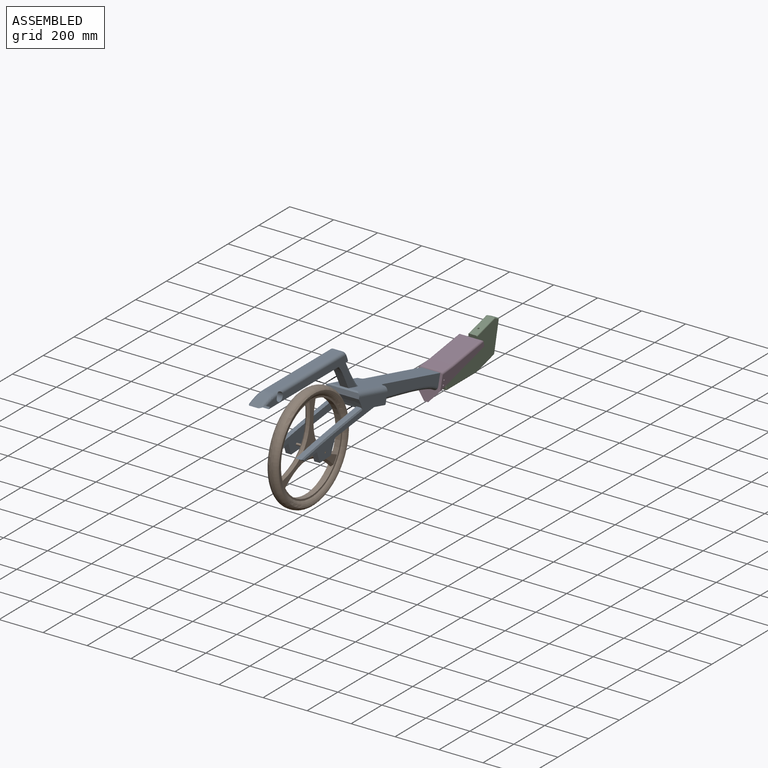
[diagram: assembled view]
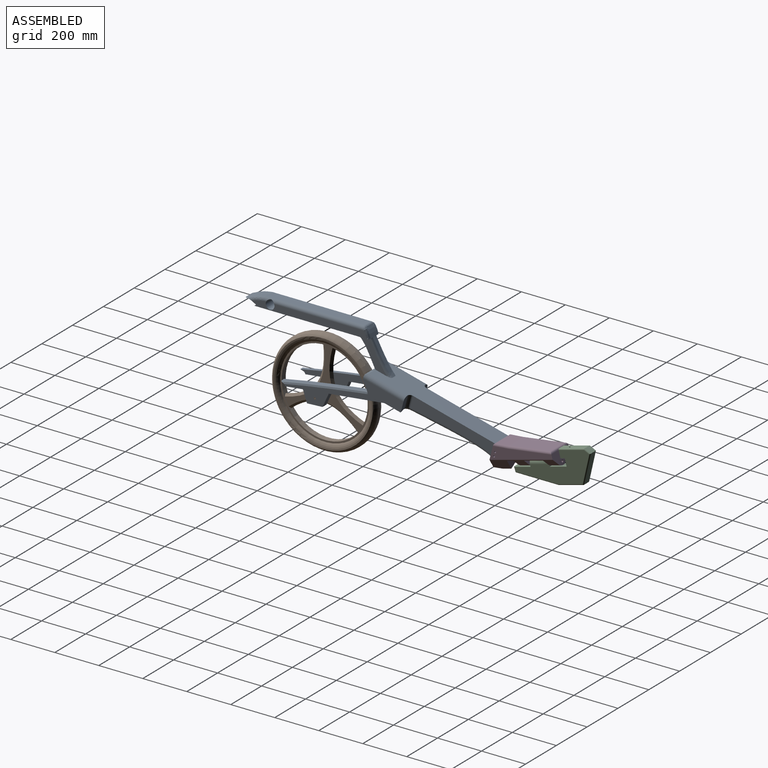
[diagram: assembled view, second angle]
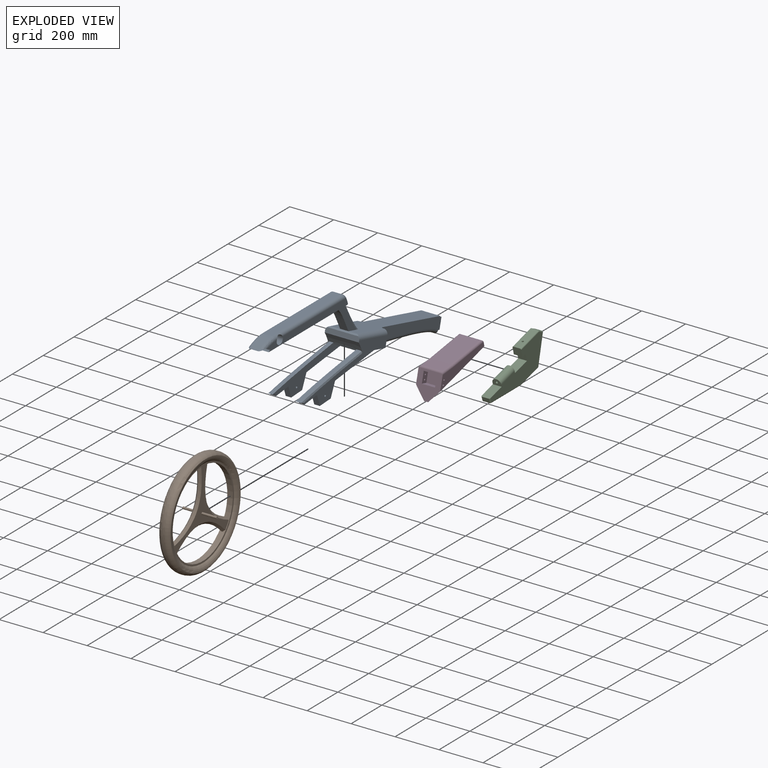
[diagram: exploded view]
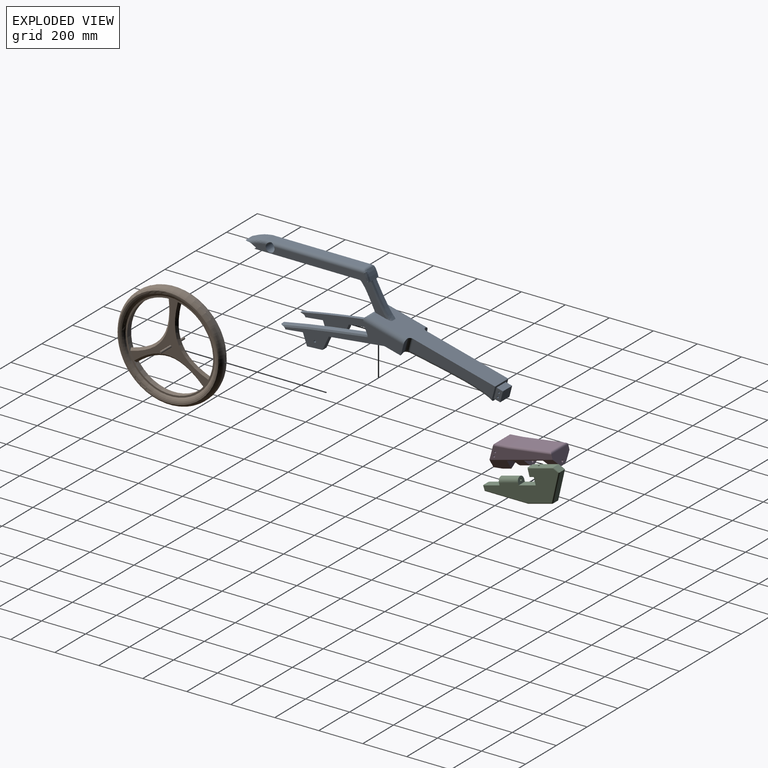
[diagram: exploded view, second angle]
ASSEMBLY  parts=4 mates=3
PART A: 78 faces, bbox 169.8x1180.4x386.9 mm
  f0: plane 155x150.26mm, normal (0,-0.25,-0.97), area 19461.9mm2, adj f1,f22,f23,f24,f34,f35,f64,f66
  f1: extruded ~155x52.6mm, area 8241.9mm2, adj f0,f21,f22,f23,f34,f36,f67,f74
  f2: plane 87.86x69.63mm, normal (0,0.97,-0.25), area 2917.9mm2, adj f19,f24,f25,f26,f27,f28,f32,f33
  f3: plane 69.88x22.41mm, normal (0,0.97,-0.25), area 1157.9mm2, adj f23,f43,f61,f66
  f4: extruded ~48x42.13mm, area 2280.9mm2, adj f10,f15,f52,f53,f54,f56,f57
  f5: plane 447.93x38mm, normal (0,0,1), area 17021.3mm2, adj f46,f50,f51,f52
  f6: extruded ~89.24x38mm, area 3565.3mm2, adj f7,f45,f46,f47
  f7: extruded ~64.82x24.32mm, area 1253.8mm2, adj f6,f8,f45,f47
  f8: extruded ~68x31.79mm, area 2359mm2, adj f7,f9,f12,f13,f45,f47
  f9: extruded ~68x7.61mm, area 683mm2, adj f8,f10,f12,f13
  f10: plane 523.5x69.99mm, normal (0,0,-1), area 33182mm2, adj f4,f9,f12,f13,f14,f16,f17,f53
  f11: cylinder r=20mm len=68mm, axis (-1,0,0), area 8545.1mm2, adj f12,f13,f50,f51
  f12: plane 524.93x31.01mm, normal (1,0,0), area 14607.3mm2, adj f8,f9,f10,f11,f45,f50,f53
  f13: plane 524.93x31.01mm, normal (-1,0,0), area 14607.3mm2, adj f8,f9,f10,f11,f47,f51,f56
  f14: extruded ~123.62x77.35mm, area 5601mm2, adj f10,f16,f17,f20
  f15: extruded ~142.09x88.91mm, area 3045.4mm2, adj f4,f19,f59,f60
  f16: plane 137.34x130.44mm, normal (1,0,0), area 4982.6mm2, adj f10,f14,f19,f60
  f17: plane 137.34x130.44mm, normal (-1,0,0), area 4982.6mm2, adj f10,f14,f19,f59
  f18: plane 69.88x22.41mm, normal (0,0.97,-0.25), area 1157.9mm2, adj f22,f44,f62,f64
  f19: plane 565.3x148.86mm, normal (0,0.25,0.97), area 52471.6mm2, adj f2,f15,f16,f17,f20,f25,f26,f43
  f20: extruded ~142.4x11.04mm, area 1461.1mm2, adj f14,f19,f21,f61,f62
  f21: extruded ~155x21.72mm, area 3384.6mm2, adj f1,f20,f22,f23,f61,f62
  f22: plane 542.69x172.18mm, normal (1,0,0), area 22240.3mm2, adj f0,f1,f18,f21,f35,f37,f38,f39
  f23: plane 543.57x173.06mm, normal (-1,0,0), area 22243.6mm2, adj f0,f1,f3,f21,f61,f66,f68,f69
  f24: extruded ~387.28x100.08mm, area 22554.7mm2, adj f0,f2,f63,f64,f65,f66
  f25: plane 386.29x148.81mm, normal (1,0,0), area 17944.1mm2, adj f2,f19,f44,f63
  f26: plane 386.29x148.81mm, normal (-1,0,0), area 17944.1mm2, adj f2,f19,f43,f65
  f27: plane 60x29.05mm, normal (0,0.25,0.97), area 1800mm2, adj f2,f31,f32,f33
  f28: plane 60x29.05mm, normal (0,-0.25,-0.97), area 1800mm2, adj f2,f31,f32,f33
  f29: cylinder r=4mm len=60mm, axis (-1,0,0), area 1508mm2, adj f32,f33
  f30: cylinder r=4mm len=60mm, axis (-1,0,0), area 1508mm2, adj f32,f33
  f31: plane 60x48.41mm, normal (0,0.97,-0.25), area 3000mm2, adj f27,f28,f32,f33
  f32: plane 55.92x41.56mm, normal (1,0,0), area 1399.5mm2, adj f2,f27,f28,f29,f30,f31
  f33: plane 55.92x41.56mm, normal (-1,0,0), area 1399.5mm2, adj f2,f27,f28,f29,f30,f31
  f34: plane 473.49x121.38mm, normal (-1,0,0), area 17473.9mm2, adj f0,f1,f35,f36,f37,f38,f39,f40
  f35: plane 252.89x28.86mm, normal (0,0.11,-0.99), area 6465.2mm2, adj f0,f22,f34,f41
  f36: extruded ~395.39x62.73mm, area 6166.3mm2, adj f1,f34,f37,f77
  f37: extruded ~25.4x22.67mm, area 633.9mm2, adj f22,f34,f36,f38,f77
  f38: plane 80.21x25.4mm, normal (0,0.11,-0.99), area 2050.5mm2, adj f22,f34,f37,f39
  f39: plane 52.73x25.4mm, normal (0,-0.94,-0.33), area 1420.4mm2, adj f22,f34,f38,f40
  f40: plane 70.71x25.4mm, normal (0,0.06,-1), area 1798.9mm2, adj f22,f34,f39,f41
  f41: plane 62.16x28.37mm, normal (0,0.91,-0.42), area 1735.5mm2, adj f22,f34,f35,f40
  f42: cylinder r=5mm len=25.4mm, axis (1,0,0), area 798mm2, adj f22,f34
  f43: cylinder r=15mm len=57.85mm, axis (0,-0.25,-0.97), area 1301mm2, adj f3,f19,f26,f61,f66
  f44: cylinder r=15mm len=57.85mm, axis (0,0.25,0.97), area 1301mm2, adj f18,f19,f25,f62,f64
  f45: bspline ~92.7x41.45mm, area 1786.7mm2, adj f6,f7,f8,f12,f48
  f46: cylinder r=15mm len=38mm, axis (-1,0,0), area 57.3mm2, adj f5,f6,f48,f49
  f47: bspline ~92.7x41.45mm, area 1786.7mm2, adj f6,f7,f8,f13,f49
  f48: sphere r=15mm, area 22.6mm2, adj f45,f46,f50
  f49: sphere r=15mm, area 22.6mm2, adj f46,f47,f51
  f50: cylinder r=15mm len=454.74mm, axis (0,1,0), area 10285.9mm2, adj f5,f11,f12,f48,f54,f55
  f51: cylinder r=15mm len=454.74mm, axis (0,-1,0), area 10285.9mm2, adj f5,f11,f13,f49,f57,f58
  f52: cylinder r=15mm len=44.7mm, axis (-1,0,0), area 455.7mm2, adj f4,f5,f55,f58
  f53: bspline ~47.07x29.05mm, area 598.9mm2, adj f4,f10,f12,f54
  f54: bspline ~15.73x12.96mm, area 130.2mm2, adj f4,f50,f53,f55
  f55: bspline ~10.95x10.95mm, area 54.1mm2, adj f50,f52,f54
  f56: bspline ~47.07x29.05mm, area 598.9mm2, adj f4,f10,f13,f57
  f57: bspline ~15.73x12.96mm, area 130.2mm2, adj f4,f51,f56,f58
  f58: bspline ~10.95x10.95mm, area 36.2mm2, adj f51,f52,f57
  f59: bspline ~156.24x101.37mm, area 2577.2mm2, adj f10,f15,f17,f19
  f60: bspline ~156.24x101.37mm, area 2577.2mm2, adj f10,f15,f16,f19
  f61: cylinder r=20mm len=188.97mm, axis (0,-0.97,0.25), area 5869.4mm2, adj f3,f19,f20,f21,f23,f43
  f62: cylinder r=20mm len=188.97mm, axis (0,0.97,-0.25), area 5869.4mm2, adj f18,f19,f20,f21,f22,f44
  f63: bspline ~480.73x131.9mm, area 9076.5mm2, adj f2,f24,f25,f64
  f64: bspline ~55.05x34.48mm, area 844mm2, adj f0,f18,f22,f24,f44,f63
  f65: bspline ~480.73x131.9mm, area 9076.5mm2, adj f2,f24,f26,f66
  f66: bspline ~55.05x34.48mm, area 843.9mm2, adj f0,f3,f23,f24,f43,f65
  f67: plane 473.49x121.38mm, normal (1,0,0), area 17473.9mm2, adj f0,f1,f68,f69,f70,f71,f72,f73
  f68: plane 252.89x28.86mm, normal (0,0.11,-0.99), area 6363.4mm2, adj f0,f23,f67,f69
  f69: plane 62.16x28.37mm, normal (0,0.91,-0.42), area 1708.1mm2, adj f23,f67,f68,f70
  f70: plane 70.71x25mm, normal (0,0.06,-1), area 1770.5mm2, adj f23,f67,f69,f71
  f71: plane 52.73x25mm, normal (0,-0.94,-0.33), area 1398mm2, adj f23,f67,f70,f72
  f72: plane 80.21x25mm, normal (0,0.11,-0.99), area 2018.3mm2, adj f23,f67,f71,f73
  f73: extruded ~25x22.67mm, area 622.3mm2, adj f23,f67,f72,f74,f76
  f74: extruded ~395.39x62.73mm, area 6006.1mm2, adj f1,f67,f73,f76
  f75: cylinder r=5mm len=25mm, axis (-1,0,0), area 785.4mm2, adj f23,f67
  f76: bspline ~422.49x76.92mm, area 6169.5mm2, adj f1,f23,f73,f74
  f77: bspline ~495.8x91.51mm, area 6169.5mm2, adj f1,f22,f36,f37
PART B: 21 faces, bbox 160.2x543.8x543.8 mm
  f0: cylinder r=195.5mm len=391mm, axis (-1,0,0), area 28188.3mm2, adj f1,f2,f3,f4,f15,f16,f17,f18
  f1: plane 406x406mm, normal (1,0,0), area 9389.4mm2, adj f0,f12
  f2: plane 406x406mm, normal (-1,0,0), area 9389.4mm2, adj f0,f11
  f3: plane 362.03x315.27mm, normal (1,0,0), area 19150.4mm2, adj f0,f5,f15,f17,f19
  f4: plane 362.03x315.27mm, normal (-1,0,0), area 19154.2mm2, adj f0,f7,f16,f18,f20
  f5: cylinder r=5mm len=67.5mm, axis (-1,0,0), area 2120.6mm2, adj f3,f8
  f6: cylinder r=2mm len=155mm, axis (-1,0,0), area 1947.8mm2, adj f8,f9
  f7: cylinder r=5mm len=67.5mm, axis (-1,0,0), area 2120.6mm2, adj f4,f9
  f8: plane 10x10mm, normal (1,0,0), area 66mm2, adj f5,f6
  f9: plane 10x10mm, normal (-1,0,0), area 66mm2, adj f6,f7
  f10: cylinder r=240.5mm len=481mm, axis (-1,0,0), area 9785mm2, adj f13,f14
  f11: torus R=227.51mm, axis (1,0,0), area 38610.3mm2, adj f2,f13
  f12: torus R=227.51mm, axis (1,0,0), area 38610.3mm2, adj f1,f14
  f13: torus R=215.1mm, axis (-1,0,0), area 39937.4mm2, adj f10,f11
  f14: torus R=215.1mm, axis (1,0,0), area 39937.4mm2, adj f10,f12
  f15: bspline ~275.26x170.19mm, area 4976.4mm2, adj f0,f3,f16
  f16: bspline ~275.26x170.2mm, area 4976.3mm2, adj f0,f4,f15
  f17: bspline ~318x82.71mm, area 4976.4mm2, adj f0,f3,f18
  f18: bspline ~318x82.7mm, area 4976.3mm2, adj f0,f4,f17
  f19: bspline ~275.26x170.2mm, area 4976.3mm2, adj f0,f3,f20
  f20: bspline ~275.26x170.19mm, area 4976.4mm2, adj f0,f4,f19
PART C: 36 faces, bbox 40x349.3x181.5 mm
  f0: plane 30x18.84mm, normal (0,-0.95,-0.33), area 598.1mm2, adj f12,f28,f31,f34
  f1: plane 193.37x30mm, normal (0,0,-1), area 5801.1mm2, adj f2,f29,f30,f34
  f2: plane 110.59x30mm, normal (0,0.26,-0.97), area 3384.5mm2, adj f1,f22,f26,f27,f35
  f3: plane 134.39x30.46mm, normal (0,0.98,-0.22), area 4133.9mm2, adj f4,f21,f22,f23
  f4: plane 30x28.75mm, normal (0,0.43,0.9), area 955.4mm2, adj f3,f5,f19,f20
  f5: plane 116.68x31.27mm, normal (0,-0.26,0.97), area 3573.7mm2, adj f4,f6,f17,f18,f35
  f6: plane 40x36.45mm, normal (0,-0.97,-0.26), area 1498.5mm2, adj f5,f7,f13,f14,f17,f18
  f7: plane 40x19.32mm, normal (0,0.26,-0.97), area 800mm2, adj f6,f8,f13,f14
  f8: plane 40x32.01mm, normal (0,-0.97,-0.26), area 1325.4mm2, adj f7,f9,f13,f14
  f9: plane 77.27x40mm, normal (0,-0.26,0.97), area 3200mm2, adj f8,f10,f13,f14
  f10: plane 40x28.98mm, normal (0,0.97,0.26), area 949.8mm2, adj f9,f13,f14,f15,f16
  f11: plane 40x28.98mm, normal (0,-0.97,-0.26), area 949.8mm2, adj f12,f13,f14,f15,f16
  f12: plane 77.27x40mm, normal (0,-0.26,0.97), area 3189.2mm2, adj f0,f11,f13,f14,f28,f31
  f13: plane 338.65x171.15mm, normal (1,0,0), area 26037.2mm2, adj f6,f7,f8,f9,f10,f11,f12,f16
  f14: plane 338.65x171.15mm, normal (-1,0,0), area 26037.2mm2, adj f6,f7,f8,f9,f10,f11,f12,f16
  f15: cylinder r=5mm len=89.52mm, axis (0,-0.97,-0.26), area 2827.4mm2, adj f10,f11
  f16: cylinder r=20mm len=92.11mm, axis (0,0.97,0.26), area 5654.9mm2, adj f10,f11,f13,f14
  f17: cylinder r=5mm len=117.98mm, axis (0,0.97,0.26), area 943.5mm2, adj f5,f6,f13,f19
  f18: cylinder r=5mm len=117.98mm, axis (0,-0.97,-0.26), area 943.5mm2, adj f5,f6,f14,f20
  f19: cylinder r=5mm len=30.9mm, axis (0,0.9,-0.43), area 233.4mm2, adj f4,f13,f17,f21
  f20: cylinder r=5mm len=30.9mm, axis (0,-0.9,0.43), area 233.4mm2, adj f4,f14,f18,f23
  f21: cylinder r=5mm len=135.49mm, axis (0,-0.22,-0.98), area 1070.9mm2, adj f3,f13,f19,f24
  f22: cylinder r=5mm len=30mm, axis (1,0,0), area 162.9mm2, adj f2,f3,f24,f25
  f23: cylinder r=5mm len=135.49mm, axis (0,0.22,0.98), area 1070.9mm2, adj f3,f14,f20,f25
  f24: sphere r=5mm, area 27.2mm2, adj f21,f22,f26
  f25: sphere r=5mm, area 27.2mm2, adj f22,f23,f27
  f26: cylinder r=5mm len=111.89mm, axis (0,-0.97,-0.26), area 897.3mm2, adj f2,f13,f24,f29
  f27: cylinder r=5mm len=111.89mm, axis (0,0.97,0.26), area 897.3mm2, adj f2,f14,f25,f30
  f28: cylinder r=5mm len=20.48mm, axis (0,-0.33,0.95), area 155.6mm2, adj f0,f12,f13,f32
  f29: cylinder r=5mm len=193.37mm, axis (0,-1,0), area 1516.8mm2, adj f1,f13,f26,f32
  f30: cylinder r=5mm len=193.37mm, axis (0,1,0), area 1516.8mm2, adj f1,f14,f27,f33
  f31: cylinder r=5mm len=20.48mm, axis (0,0.33,-0.95), area 155.6mm2, adj f0,f12,f14,f33
  f32: sphere r=5mm, area 30.9mm2, adj f28,f29,f34
  f33: sphere r=5mm, area 30.9mm2, adj f30,f31,f34
  f34: cylinder r=5mm len=30mm, axis (-1,0,0), area 185.7mm2, adj f0,f1,f32,f33
  f35: cylinder r=4mm len=142.39mm, axis (0,-0.26,0.97), area 3651.1mm2, adj f2,f5
PART D: 36 faces, bbox 110x310.5x156.8 mm
  f0: cylinder r=4mm len=25mm, axis (-1,0,0), area 628.3mm2, adj f16,f19
  f1: cylinder r=4mm len=25mm, axis (-1,0,0), area 628.3mm2, adj f16,f19
  f2: plane 115.81x110.02mm, normal (0,-0.97,0.25), area 7745.8mm2, adj f3,f15,f16,f17,f18,f19,f20,f24
  f3: plane 35.61x18.43mm, normal (0,0,-1), area 328.1mm2, adj f2,f24,f25
  f4: plane 100x55.62mm, normal (0,0.97,-0.25), area 2872.1mm2, adj f5,f24,f25
  f5: plane 100x28.98mm, normal (0,0.26,-0.97), area 3000mm2, adj f4,f6,f24,f25
  f6: plane 100x33.8mm, normal (0,-0.97,-0.26), area 2134.3mm2, adj f5,f23,f24,f25,f32,f33
  f7: plane 100x33.8mm, normal (0,0.97,0.26), area 2134.3mm2, adj f8,f23,f24,f25,f32,f33
  f8: plane 100x86.93mm, normal (0,0.26,-0.97), area 9000mm2, adj f7,f9,f24,f25
  f9: plane 100x33.8mm, normal (0,-0.97,-0.26), area 2134.3mm2, adj f8,f22,f24,f25,f34,f35
  f10: plane 110x58.9mm, normal (0,0.97,0.26), area 4967.4mm2, adj f15,f16,f22,f24,f25,f29,f30,f31
  f11: plane 188.47x90mm, normal (0,-0.14,0.99), area 17136.9mm2, adj f13,f29,f30,f31
  f12: cylinder r=4mm len=25mm, axis (-1,0,0), area 628.3mm2, adj f15,f17
  f13: plane 90x56.4mm, normal (0,-0.09,1), area 5096.4mm2, adj f11,f26,f27,f28
  f14: cylinder r=4mm len=25mm, axis (-1,0,0), area 628.3mm2, adj f15,f17
  f15: plane 286.94x96mm, normal (1,0,0), area 10365.8mm2, adj f2,f10,f12,f14,f24,f27,f29
  f16: plane 286.94x96mm, normal (-1,0,0), area 10365.8mm2, adj f0,f1,f2,f10,f25,f28,f30
  f17: plane 55.92x41.56mm, normal (-1,0,0), area 1399.5mm2, adj f2,f12,f14,f18,f20,f21
  f18: plane 60x29.05mm, normal (0,-0.25,-0.97), area 1800mm2, adj f2,f17,f19,f21
  f19: plane 55.92x41.56mm, normal (1,0,0), area 1399.5mm2, adj f0,f1,f2,f18,f20,f21
  f20: plane 60x29.05mm, normal (0,0.25,0.97), area 1800mm2, adj f2,f17,f19,f21
  f21: plane 60x48.41mm, normal (0,-0.97,0.25), area 3000mm2, adj f17,f18,f19,f20
  f22: cylinder r=5mm len=50.88mm, axis (0,0.97,0.26), area 1570.8mm2, adj f9,f10
  f23: cylinder r=5mm len=50.88mm, axis (0,0.97,0.26), area 1570.8mm2, adj f6,f7
  f24: plane 307.58x127.81mm, normal (0.71,0.18,-0.68), area 10877.6mm2, adj f2,f3,f4,f5,f6,f7,f8,f9
  f25: plane 307.58x127.81mm, normal (-0.71,0.18,-0.68), area 10877.6mm2, adj f2,f3,f4,f5,f6,f7,f8,f9
  f26: cylinder r=10mm len=108.84mm, axis (-1,0,0), area 1239.1mm2, adj f2,f13,f27,f28
  f27: cylinder r=10mm len=68.13mm, axis (0,1,0.09), area 991.8mm2, adj f2,f13,f15,f26,f29
  f28: cylinder r=10mm len=68.13mm, axis (0,-1,-0.09), area 991.8mm2, adj f2,f13,f16,f26,f30
  f29: cylinder r=10mm len=200.13mm, axis (0,0.99,0.14), area 3092.5mm2, adj f10,f11,f15,f27,f31
  f30: cylinder r=10mm len=200.13mm, axis (0,-0.99,-0.14), area 3092.5mm2, adj f10,f11,f16,f28,f31
  f31: cylinder r=10mm len=109.86mm, axis (1,0,0), area 1483mm2, adj f10,f11,f29,f30
  f32: cylinder r=38mm len=51.18mm, axis (0,0.97,0.26), area 1455.2mm2, adj f6,f7,f24,f33
  f33: cylinder r=38mm len=51.18mm, axis (0,0.97,0.26), area 1455.2mm2, adj f6,f7,f25,f32
  f34: cylinder r=38mm len=51.18mm, axis (0,0.97,0.26), area 1455.2mm2, adj f9,f10,f24,f35
  f35: cylinder r=38mm len=51.18mm, axis (0,0.97,0.26), area 1455.2mm2, adj f9,f10,f25,f34
PLACE A rot(axis=(-1,0,0),0deg) t=(0,-327.06,31.04)mm
PLACE B rot(axis=(-1,0,0),4deg) t=(0,-964.07,31.04)mm
PLACE C at identity fixed
PLACE D t=(0,-10.56,37.9)mm
MATE fastened A.f31 <-> D.f21  axis (0,0.97,-0.25) through (0,-148.28,3.43)mm
MATE revolute C.f15 <-> D.f22  axis (0,-0.97,-0.26) through (0,-27.66,-5.53)mm
MATE revolute B.f0 <-> A.f42  axis (1,0,0) through (77.5,-964.07,31.04)mm
